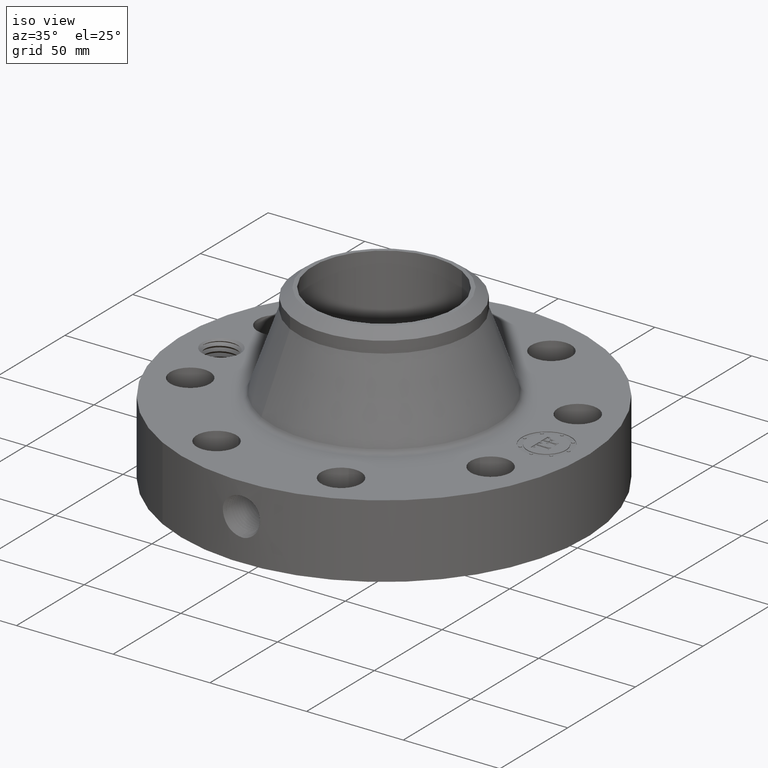
[diagram: clean part render]
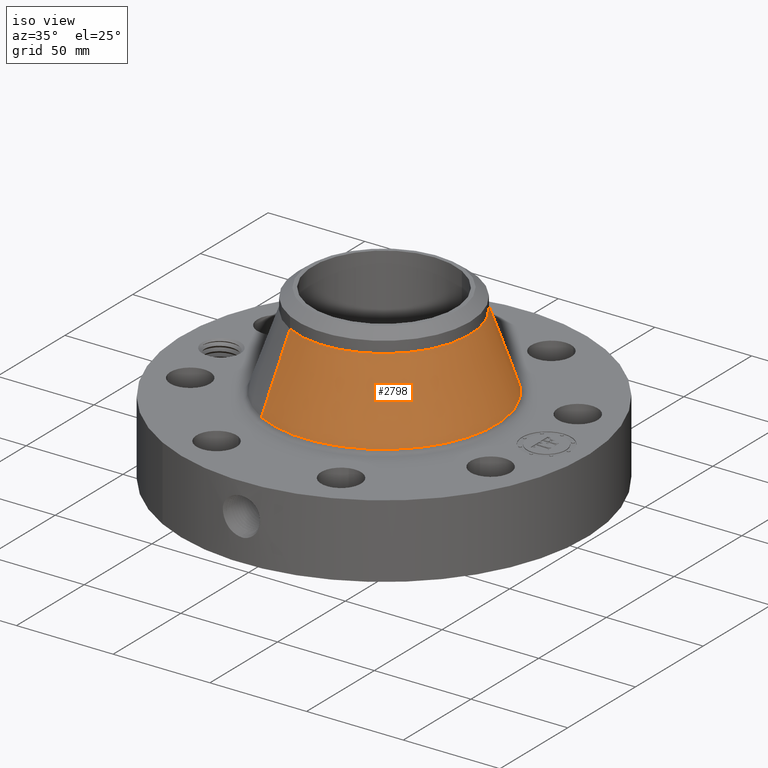
[diagram: same view with one face highlighted and labeled with its STEP entity id]
A machine part, iso view. The second image highlights one B-rep face of the part: STEP entity #2798.
In plain terms, the highlighted conical surface has half-angle 19.357 deg.
Its self-contained STEP definition (entity closure, byte-faithful):
#2151=AXIS2_PLACEMENT_3D('Circle Axis2P3D',#2149,#2150,$) ;
#2771=AXIS2_PLACEMENT_3D('Cone Axis2P3D',#2768,#2769,#2770) ;
#2782=AXIS2_PLACEMENT_3D('Circle Axis2P3D',#2780,#2781,$) ;
#2146=CARTESIAN_POINT('Vertex',(1.09396064071,2.00248152086,1.64022511755)) ;
#2149=CARTESIAN_POINT('Axis2P3D Location',(0.,0.,1.64022511755)) ;
#2153=CARTESIAN_POINT('Vertex',(-1.09396064071,-2.00248152086,1.64022511755)) ;
#2768=CARTESIAN_POINT('Axis2P3D Location',(0.,0.,3.15400087905)) ;
#2773=CARTESIAN_POINT('Line Origine',(0.966477666636,1.76912550209,2.3971129983)) ;
#2777=CARTESIAN_POINT('Vertex',(0.838994692561,1.53576948331,3.15400087905)) ;
#2780=CARTESIAN_POINT('Axis2P3D Location',(0.,0.,3.15400087905)) ;
#2784=CARTESIAN_POINT('Vertex',(-0.838994692561,-1.53576948331,3.15400087905)) ;
#2787=CARTESIAN_POINT('Line Origine',(-0.966477666636,-1.76912550209,2.3971129983)) ;
#2150=DIRECTION('Axis2P3D Direction',(0.,0.,-0.0393700787402)) ;
#2769=DIRECTION('Axis2P3D Direction',(0.,0.,-0.0393700787402)) ;
#2770=DIRECTION('Axis2P3D XDirection',(-0.0188750212049,-0.0345504945626,0.)) ;
#2774=DIRECTION('Vector Direction',(0.00625626458109,0.0114520154995,-0.0371444961535)) ;
#2781=DIRECTION('Axis2P3D Direction',(0.,0.,-0.0393700787402)) ;
#2788=DIRECTION('Vector Direction',(-0.00625626458109,-0.0114520154995,-0.0371444961535)) ;
#2775=VECTOR('Line Direction',#2774,0.0393700787402) ;
#2789=VECTOR('Line Direction',#2788,0.0393700787402) ;
#2793=ORIENTED_EDGE('',*,*,#2155,.F.) ;
#2794=ORIENTED_EDGE('',*,*,#2779,.T.) ;
#2795=ORIENTED_EDGE('',*,*,#2786,.T.) ;
#2796=ORIENTED_EDGE('',*,*,#2791,.F.) ;
#2798=ADVANCED_FACE('PartBody',(#2797),#2772,.T.) ;
#2152=CIRCLE('generated circle',#2151,2.2818155326) ;
#2783=CIRCLE('generated circle',#2782,1.75000000001) ;
#2772=CONICAL_SURFACE('Cone',#2771,1.75000000001,0.337847830751) ;
#2155=EDGE_CURVE('',#2147,#2154,#2152,.T.) ;
#2779=EDGE_CURVE('',#2147,#2778,#2776,.F.) ;
#2786=EDGE_CURVE('',#2778,#2785,#2783,.T.) ;
#2791=EDGE_CURVE('',#2154,#2785,#2790,.F.) ;
#2792=EDGE_LOOP('',(#2793,#2794,#2795,#2796)) ;
#2797=FACE_OUTER_BOUND('',#2792,.T.) ;
#2776=LINE('Line',#2773,#2775) ;
#2790=LINE('Line',#2787,#2789) ;
#2147=VERTEX_POINT('',#2146) ;
#2154=VERTEX_POINT('',#2153) ;
#2778=VERTEX_POINT('',#2777) ;
#2785=VERTEX_POINT('',#2784) ;